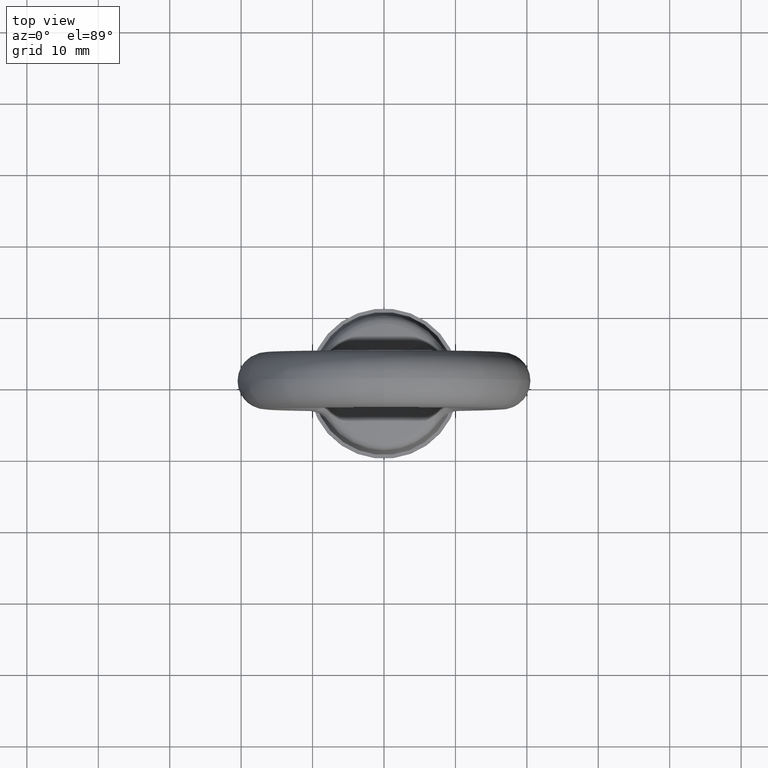
[diagram: clean part render]
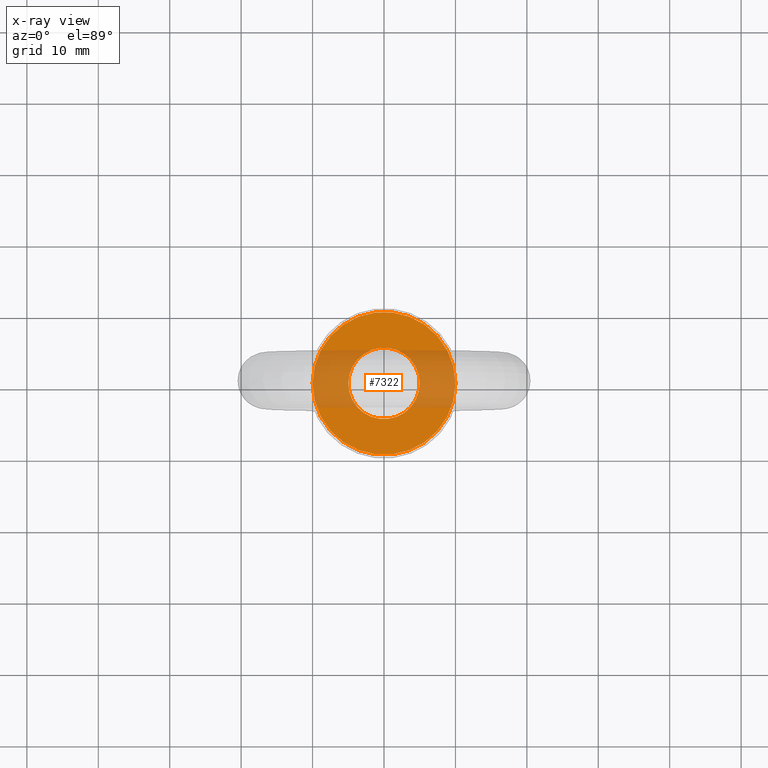
[diagram: x-ray — body ghosted, one internal face saturated and labeled with its STEP entity id]
A machine part, top view, then the same camera in x-ray: the body is ghosted and one INTERNAL B-rep face — a face not visible from any outside direction — is saturated and labeled: STEP entity #7322.
In plain terms, the highlighted planar face has unit normal (0, 0, 1).
Its self-contained STEP definition (entity closure, byte-faithful):
#6216 = DIRECTION ( 'NONE',  ( -1.000000000000000000, 0.0000000000000000000, 0.0000000000000000000 ) ) ;
#6235 = DIRECTION ( 'NONE',  ( 0.0000000000000000000, 0.0000000000000000000, -1.000000000000000000 ) ) ;
#6236 = CARTESIAN_POINT ( 'NONE',  ( 0.0000000000000000000, 0.0000000000000000000, -21.00000000000000000 ) ) ;
#6237 = AXIS2_PLACEMENT_3D ( 'NONE', #6236, #6235, #6216 ) ;
#6258 = DIRECTION ( 'NONE',  ( 1.000000000000000000, 0.0000000000000000000, 0.0000000000000000000 ) ) ;
#6259 = DIRECTION ( 'NONE',  ( 0.0000000000000000000, 0.0000000000000000000, -1.000000000000000000 ) ) ;
#6260 = CARTESIAN_POINT ( 'NONE',  ( 0.0000000000000000000, 0.0000000000000000000, -21.00000000000000000 ) ) ;
#6261 = AXIS2_PLACEMENT_3D ( 'NONE', #6260, #6259, #6258 ) ;
#6262 = CIRCLE ( 'NONE', #6261, 5.000000000000000000 ) ;
#6293 = DIRECTION ( 'NONE',  ( -1.000000000000000000, 0.0000000000000000000, 0.0000000000000000000 ) ) ;
#6294 = DIRECTION ( 'NONE',  ( 0.0000000000000000000, 0.0000000000000000000, -1.000000000000000000 ) ) ;
#6295 = CARTESIAN_POINT ( 'NONE',  ( 0.0000000000000000000, 0.0000000000000000000, -21.00000000000000000 ) ) ;
#6296 = AXIS2_PLACEMENT_3D ( 'NONE', #6295, #6294, #6293 ) ;
#6297 = CIRCLE ( 'NONE', #6296, 10.00000000000000000 ) ;
#6298 = DIRECTION ( 'NONE',  ( 1.000000000000000000, 0.0000000000000000000, 0.0000000000000000000 ) ) ;
#6299 = DIRECTION ( 'NONE',  ( 0.0000000000000000000, 0.0000000000000000000, 1.000000000000000000 ) ) ;
#6300 = CARTESIAN_POINT ( 'NONE',  ( -10.00000000000000000, 0.0000000000000000000, -21.00000000000000000 ) ) ;
#6301 = AXIS2_PLACEMENT_3D ( 'NONE', #6300, #6299, #6298 ) ;
#6302 = PLANE ( 'NONE',  #6301 ) ;
#6303 = FACE_BOUND ( 'NONE', #7289, .T. ) ;
#6304 = FACE_OUTER_BOUND ( 'NONE', #7326, .T. ) ;
#6305 = CARTESIAN_POINT ( 'NONE',  ( -5.000000000000000000, 6.123031769111886300E-016, -21.00000000000000000 ) ) ;
#6310 = CIRCLE ( 'NONE', #6237, 10.00000000000000000 ) ;
#6311 = CARTESIAN_POINT ( 'NONE',  ( -10.00000000000000000, 0.0000000000000000000, -21.00000000000000000 ) ) ;
#6329 = CARTESIAN_POINT ( 'NONE',  ( 10.00000000000000000, 1.224606353822377100E-015, -21.00000000000000000 ) ) ;
#6343 = AXIS2_PLACEMENT_3D ( 'NONE', #6365, #6364, #6363 ) ;
#6344 = CIRCLE ( 'NONE', #6343, 5.000000000000000000 ) ;
#6363 = DIRECTION ( 'NONE',  ( 1.000000000000000000, 0.0000000000000000000, 0.0000000000000000000 ) ) ;
#6364 = DIRECTION ( 'NONE',  ( 0.0000000000000000000, 0.0000000000000000000, -1.000000000000000000 ) ) ;
#6365 = CARTESIAN_POINT ( 'NONE',  ( 0.0000000000000000000, 0.0000000000000000000, -21.00000000000000000 ) ) ;
#6409 = CARTESIAN_POINT ( 'NONE',  ( 5.000000000000000000, 0.0000000000000000000, -21.00000000000000000 ) ) ;
#7266 = VERTEX_POINT ( 'NONE', #6409 ) ;
#7275 = VERTEX_POINT ( 'NONE', #6329 ) ;
#7276 = VERTEX_POINT ( 'NONE', #6311 ) ;
#7279 = EDGE_CURVE ( 'NONE', #7276, #7275, #6310, .T. ) ;
#7289 = EDGE_LOOP ( 'NONE', ( #7290, #7292 ) ) ;
#7290 = ORIENTED_EDGE ( 'NONE', *, *, #7291, .F. ) ;
#7291 = EDGE_CURVE ( 'NONE', #7266, #7321, #6262, .T. ) ;
#7292 = ORIENTED_EDGE ( 'NONE', *, *, #7318, .F. ) ;
#7318 = EDGE_CURVE ( 'NONE', #7321, #7266, #6344, .T. ) ;
#7321 = VERTEX_POINT ( 'NONE', #6305 ) ;
#7322 = ADVANCED_FACE ( 'NONE', ( #6304, #6303 ), #6302, .F. ) ;
#7323 = ORIENTED_EDGE ( 'NONE', *, *, #7279, .T. ) ;
#7324 = ORIENTED_EDGE ( 'NONE', *, *, #7325, .T. ) ;
#7325 = EDGE_CURVE ( 'NONE', #7275, #7276, #6297, .T. ) ;
#7326 = EDGE_LOOP ( 'NONE', ( #7323, #7324 ) ) ;